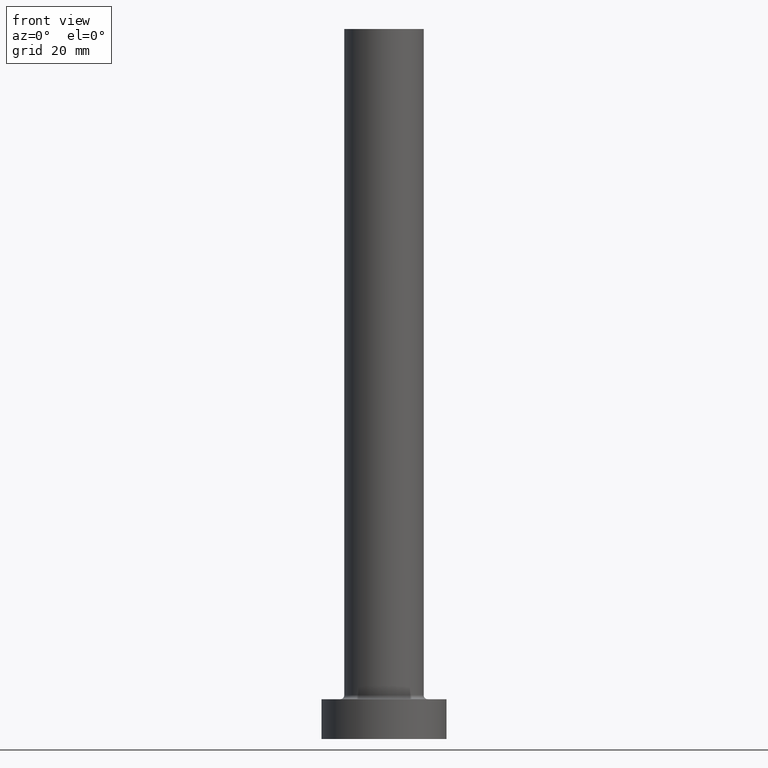
[diagram: clean part render]
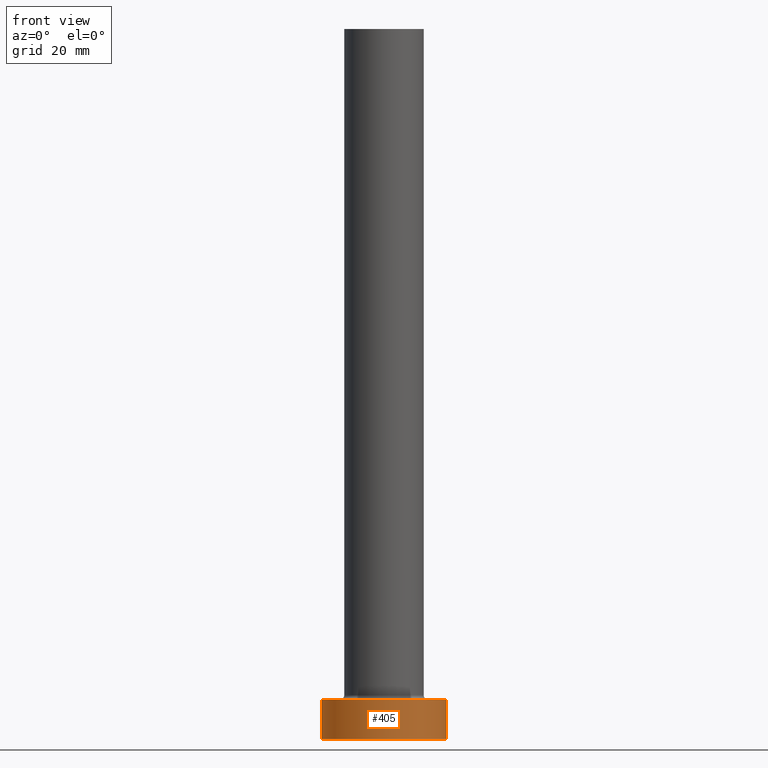
[diagram: same view with one face highlighted and labeled with its STEP entity id]
A machine part, front view. The second image highlights one B-rep face of the part: STEP entity #405.
In plain terms, the highlighted cylindrical surface (partial cylindrical patch) has radius 11 mm, axis along (-0, -0, -1).
Its self-contained STEP definition (entity closure, byte-faithful):
#2 = CYLINDRICAL_SURFACE ( 'NONE', #157, 11.00000000000000000 ) ;
#25 = CARTESIAN_POINT ( 'NONE',  ( 11.00000000000000000, 1.347111479062088405E-15, 7.000000000000000000 ) ) ;
#27 = CARTESIAN_POINT ( 'NONE',  ( 11.00000000000000000, 1.347111479062088405E-15, 0.000000000000000000 ) ) ;
#30 = CARTESIAN_POINT ( 'NONE',  ( 0.000000000000000000, 0.000000000000000000, 7.000000000000000000 ) ) ;
#43 = EDGE_LOOP ( 'NONE', ( #433, #113, #143, #196 ) ) ;
#67 = DIRECTION ( 'NONE',  ( 1.000000000000000000, 0.000000000000000000, 0.000000000000000000 ) ) ;
#71 = EDGE_CURVE ( 'NONE', #155, #230, #201, .T. ) ;
#74 = FACE_OUTER_BOUND ( 'NONE', #43, .T. ) ;
#75 = EDGE_CURVE ( 'NONE', #218, #81, #215, .T. ) ;
#79 = CARTESIAN_POINT ( 'NONE',  ( -11.00000000000000000, 0.000000000000000000, 7.000000000000000000 ) ) ;
#81 = VERTEX_POINT ( 'NONE', #207 ) ;
#86 = AXIS2_PLACEMENT_3D ( 'NONE', #356, #145, #393 ) ;
#113 = ORIENTED_EDGE ( 'NONE', *, *, #354, .F. ) ;
#143 = ORIENTED_EDGE ( 'NONE', *, *, #75, .T. ) ;
#145 = DIRECTION ( 'NONE',  ( 0.000000000000000000, 0.000000000000000000, 1.000000000000000000 ) ) ;
#155 = VERTEX_POINT ( 'NONE', #282 ) ;
#157 = AXIS2_PLACEMENT_3D ( 'NONE', #30, #357, #419 ) ;
#158 = EDGE_CURVE ( 'NONE', #81, #230, #322, .T. ) ;
#188 = VECTOR ( 'NONE', #270, 1000.000000000000000 ) ;
#196 = ORIENTED_EDGE ( 'NONE', *, *, #158, .T. ) ;
#201 = LINE ( 'NONE', #25, #228 ) ;
#207 = CARTESIAN_POINT ( 'NONE',  ( -11.00000000000000000, 0.000000000000000000, 0.000000000000000000 ) ) ;
#215 = LINE ( 'NONE', #443, #188 ) ;
#218 = VERTEX_POINT ( 'NONE', #79 ) ;
#228 = VECTOR ( 'NONE', #241, 1000.000000000000000 ) ;
#230 = VERTEX_POINT ( 'NONE', #27 ) ;
#241 = DIRECTION ( 'NONE',  ( -0.000000000000000000, -0.000000000000000000, -1.000000000000000000 ) ) ;
#250 = AXIS2_PLACEMENT_3D ( 'NONE', #252, #387, #67 ) ;
#252 = CARTESIAN_POINT ( 'NONE',  ( 0.000000000000000000, 0.000000000000000000, 7.000000000000000000 ) ) ;
#270 = DIRECTION ( 'NONE',  ( -0.000000000000000000, -0.000000000000000000, -1.000000000000000000 ) ) ;
#282 = CARTESIAN_POINT ( 'NONE',  ( 11.00000000000000000, 1.347111479062088405E-15, 7.000000000000000000 ) ) ;
#322 = CIRCLE ( 'NONE', #86, 11.00000000000000000 ) ;
#354 = EDGE_CURVE ( 'NONE', #218, #155, #384, .T. ) ;
#356 = CARTESIAN_POINT ( 'NONE',  ( 0.000000000000000000, 0.000000000000000000, 0.000000000000000000 ) ) ;
#357 = DIRECTION ( 'NONE',  ( -0.000000000000000000, -0.000000000000000000, -1.000000000000000000 ) ) ;
#384 = CIRCLE ( 'NONE', #250, 11.00000000000000000 ) ;
#387 = DIRECTION ( 'NONE',  ( 0.000000000000000000, 0.000000000000000000, 1.000000000000000000 ) ) ;
#393 = DIRECTION ( 'NONE',  ( 1.000000000000000000, 0.000000000000000000, 0.000000000000000000 ) ) ;
#405 = ADVANCED_FACE ( 'NONE', ( #74 ), #2, .T. ) ;
#419 = DIRECTION ( 'NONE',  ( -1.000000000000000000, 0.000000000000000000, 0.000000000000000000 ) ) ;
#433 = ORIENTED_EDGE ( 'NONE', *, *, #71, .F. ) ;
#443 = CARTESIAN_POINT ( 'NONE',  ( -11.00000000000000000, 0.000000000000000000, 7.000000000000000000 ) ) ;